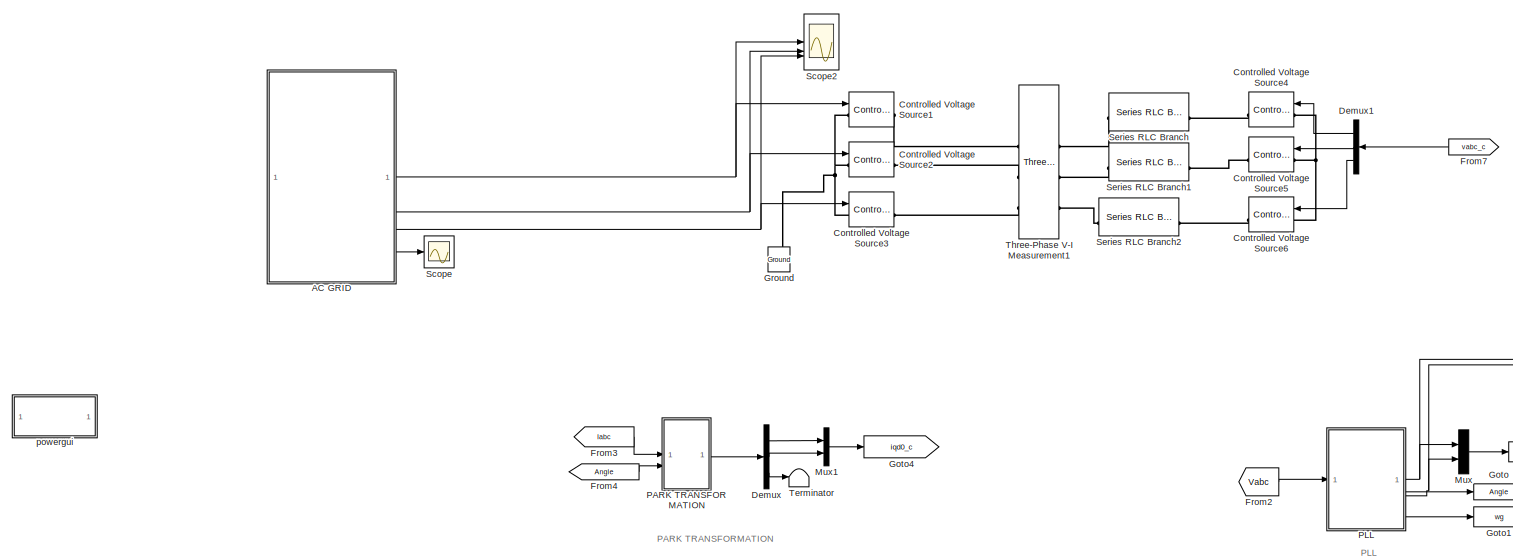
[diagram: root canvas - part 1/3, full width, top band]
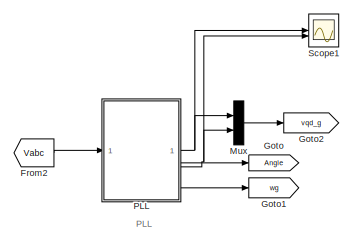
[diagram: root canvas - part 2/3, middle right region]
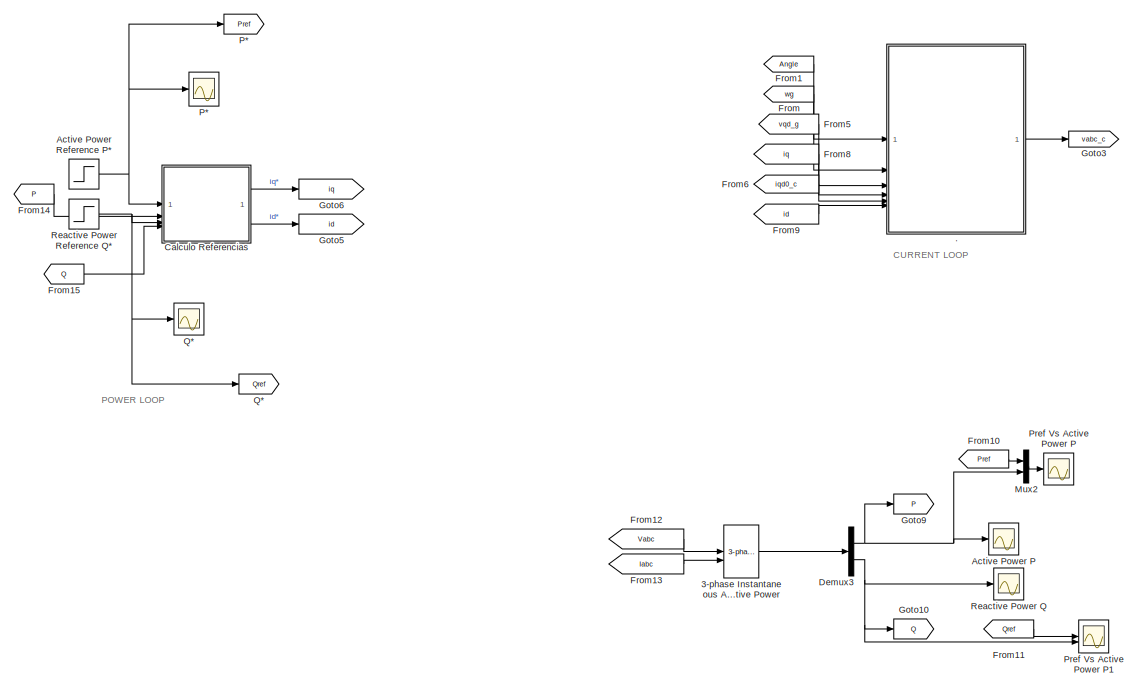
[diagram: root canvas - part 3/3, bottom center region]
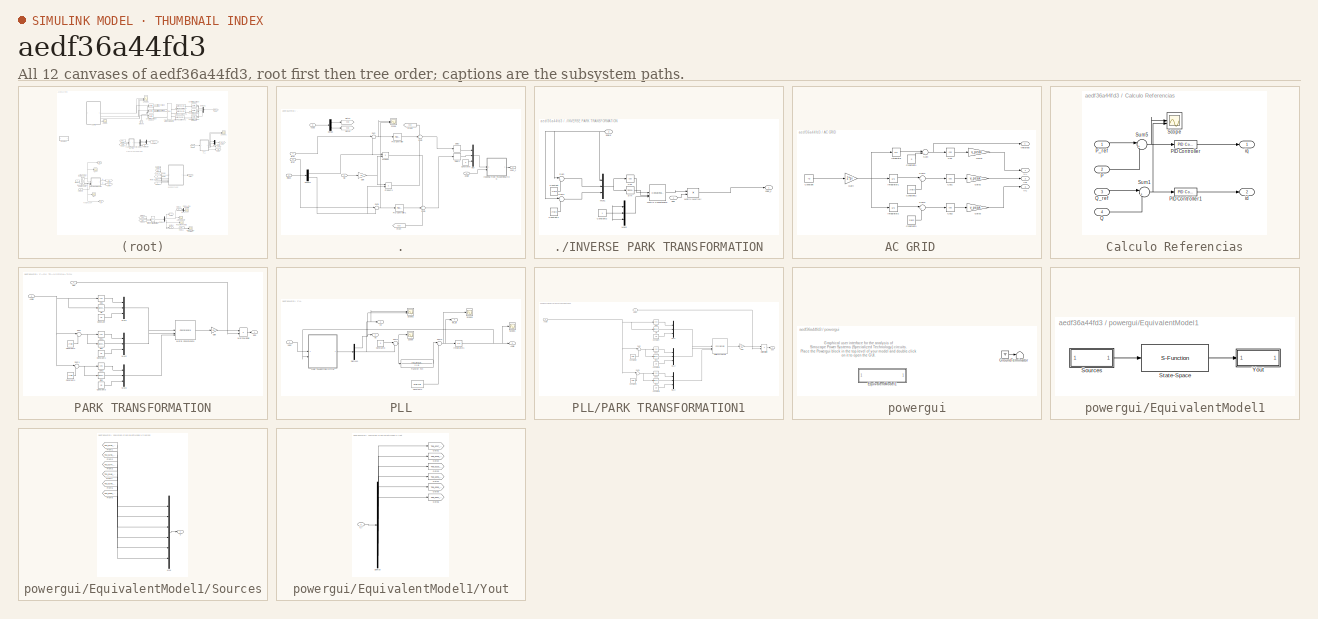
[diagram: thumbnail index - all 12 canvases of the model, root first then tree order]
MODEL slx_aedf36a44fd3
KIND model
CONFIG AbsTol = auto
CONFIG EnableMultiTasking = off
CONFIG FixedStep = 1e-4
CONFIG MaxStep = 1e-5
CONFIG MinStep = auto
CONFIG RelTol = 1e-4
CONFIG SampleTimeConstraint = Unconstrained
CONFIG SolverName = ode1
CONFIG StartTime = 0.0
CONFIG StopTime = 2
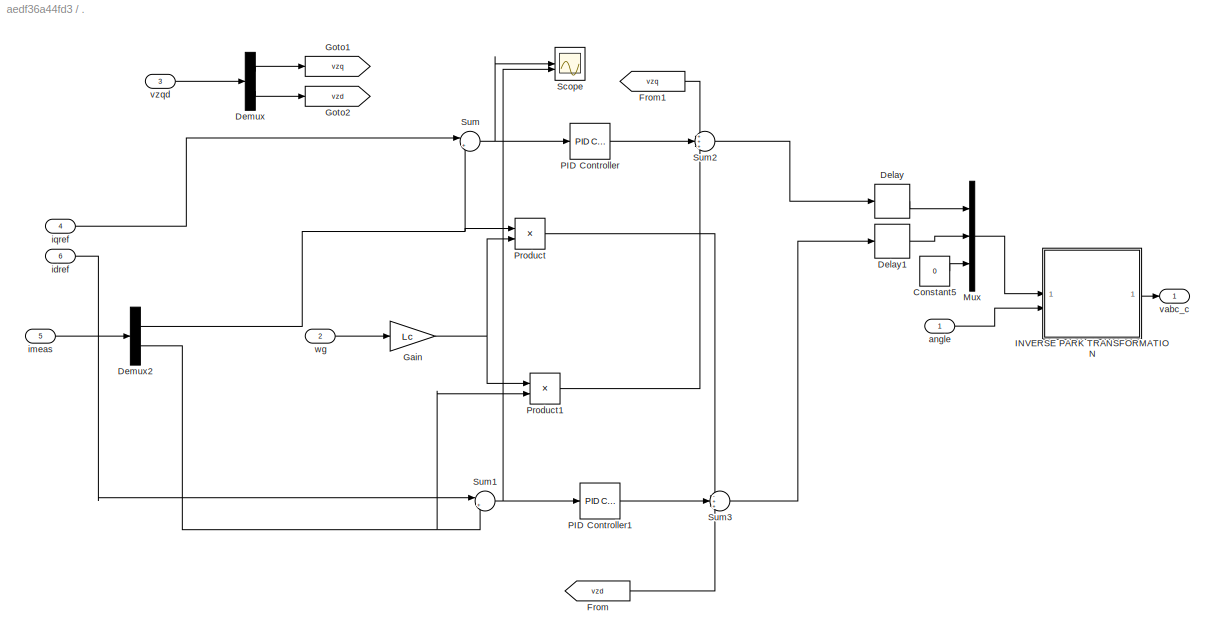
BLOCK [SubSystem] .
BLOCK [Constant] ./Constant5
  Value = 0
BLOCK [Delay] ./Delay
  DelayLength = 1
  InputPortMap = u0
BLOCK [Delay] ./Delay1
  DelayLength = 1
  InputPortMap = u0
BLOCK [Demux] ./Demux
  Outputs = 2
BLOCK [Demux] ./Demux2
  Outputs = 2
BLOCK [From] ./From
  GotoTag = vzd
BLOCK [From] ./From1
  GotoTag = vzq
BLOCK [Gain] ./Gain
  Gain = Lc
BLOCK [Goto] ./Goto1
  GotoTag = vzq
BLOCK [Goto] ./Goto2
  GotoTag = vzd
BLOCK [SubSystem] ./INVERSE PARK TRANSFORMATION
BLOCK [Constant] ./INVERSE PARK TRANSFORMATION/Constant
  Value = -2*pi/3
BLOCK [Constant] ./INVERSE PARK TRANSFORMATION/Constant1
  Value = 2*pi/3
BLOCK [Constant] ./INVERSE PARK TRANSFORMATION/Constant2
BLOCK [Trigonometry] ./INVERSE PARK TRANSFORMATION/Cos
  Operator = cos
BLOCK [Concatenate] ./INVERSE PARK TRANSFORMATION/Matrix Concatenate
  ConcatenateDimension = 2
  Mode = Multidimensional array
  NumInputs = 3
BLOCK [Product] ./INVERSE PARK TRANSFORMATION/Matrix Multiply
  Multiplication = Matrix(*)
BLOCK [Mux] ./INVERSE PARK TRANSFORMATION/Mux1
  DisplayOption = bar
  Inputs = 3
BLOCK [Mux] ./INVERSE PARK TRANSFORMATION/Mux2
  DisplayOption = bar
  Inputs = 3
BLOCK [Trigonometry] ./INVERSE PARK TRANSFORMATION/Sin
BLOCK [Sum] ./INVERSE PARK TRANSFORMATION/Sum
  Inputs = |++
BLOCK [Sum] ./INVERSE PARK TRANSFORMATION/Sum1
  Inputs = |++
BLOCK [Inport] ./INVERSE PARK TRANSFORMATION/angle
  IconDisplay = Signal name
  Port = 2
BLOCK [Inport] ./INVERSE PARK TRANSFORMATION/dq0
BLOCK [Outport] ./INVERSE PARK TRANSFORMATION/vabc_c
  IconDisplay = Signal name
BLOCK [Mux] ./Mux
  DisplayOption = bar
  Inputs = 3
BLOCK [Reference] ./PID Controller  REF=slpidlib/PID Controller
  LibrarySourceBlock = simulink/Continuous/PID Controller
  SourceBlock = slpidlib/PID Controller
  SourceType = PID 1dof
BLOCK [Reference] ./PID Controller1  REF=slpidlib/PID Controller
  LibrarySourceBlock = simulink/Continuous/PID Controller
  SourceBlock = slpidlib/PID Controller
  SourceType = PID 1dof
BLOCK [Product] ./Product
BLOCK [Product] ./Product1
BLOCK [Scope] ./Scope
  Floating = off
  NumInputPorts = 2
  ScopeSpecificationString = Simulink.scopes.TimeScopeBlockCfg('CurrentConfiguration', extmgr.ConfigurationSet(extmgr.Configuration('Core','General UI',true),extmgr.Configuration('Core','Source UI',true),extmgr.Configuration('Sources','WiredSimulink',true,'DataLoggingVariableName','ScopeData1'),extmgr.Configuration('Visuals','Time Domain',true,'SerializedDisplays',{struct('MinYLimReal','-55.90678','MaxYLimReal','448.85242','Y...<+1539ch>
BLOCK [Sum] ./Sum
  Inputs = |+-
BLOCK [Sum] ./Sum1
  Inputs = |+-
BLOCK [Sum] ./Sum2
  Inputs = +++
BLOCK [Sum] ./Sum3
  Inputs = -++
BLOCK [Inport] ./angle
BLOCK [Inport] ./idref
  Port = 6
BLOCK [Inport] ./imeas
  Port = 5
BLOCK [Inport] ./iqref
  Port = 4
BLOCK [Outport] ./vabc_c
BLOCK [Inport] ./vzqd
  Port = 3
BLOCK [Inport] ./wg
  Port = 2
BLOCK [Reference] 3-phase  Instantaneous  Active & Reactive Power  REF=powerlib_extras/Measurements/3-phase 
Instantaneous 
Active & Reactive Power
  SourceBlock = powerlib_extras/Measurements/3-phase \nInstantaneous \nActive & Reactive Power
  SourceType = 3-phase instantaneous active and reactive power
BLOCK [SubSystem] AC GRID  
BLOCK [Constant] AC GRID  /Constant
  Value = fg
BLOCK [Constant] AC GRID  /Constant1
  Value = 0
BLOCK [Constant] AC GRID  /Constant2
  Value = -2*pi/3
BLOCK [Constant] AC GRID  /Constant3
  Value = 2*pi/3
BLOCK [Trigonometry] AC GRID  /Cos
  Operator = cos
BLOCK [Trigonometry] AC GRID  /Cos1
  Operator = cos
BLOCK [Trigonometry] AC GRID  /Cos2
  Operator = cos
BLOCK [Gain] AC GRID  /Gain
  Gain = 2*pi
BLOCK [Gain] AC GRID  /Gain1
  Gain = v_peak
BLOCK [Gain] AC GRID  /Gain2
  Gain = v_peak
BLOCK [Gain] AC GRID  /Gain3
  Gain = v_peak
BLOCK [Integrator] AC GRID  /Integrator
BLOCK [Integrator] AC GRID  /Integrator1
BLOCK [Integrator] AC GRID  /Integrator2
BLOCK [Sum] AC GRID  /Sum
  Inputs = |++
BLOCK [Sum] AC GRID  /Sum1
  Inputs = |++
BLOCK [Sum] AC GRID  /Sum2
  Inputs = |++
BLOCK [Outport] AC GRID  /VA
BLOCK [Outport] AC GRID  /VB
  Port = 2
BLOCK [Outport] AC GRID  /VC
  Port = 3
BLOCK [Outport] AC GRID  /thetareal
  Port = 4
BLOCK [Scope] Active Power P
  Floating = off
  NameLocation = top
  NumInputPorts = 1
  ScopeSpecificationString = Simulink.scopes.TimeScopeBlockCfg('CurrentConfiguration', extmgr.ConfigurationSet(extmgr.Configuration('Core','General UI',true),extmgr.Configuration('Core','Source UI',true),extmgr.Configuration('Sources','WiredSimulink',true,'DataLoggingVariableName','ScopeData3','DataLoggingSaveFormat','StructureWithTime','DataLoggingDecimation','1','DataLoggingDecimateData',true),extmgr.Configuration('Visuals'...<+1797ch>
BLOCK [Step] Active Power Reference P* 
  After = 5e6
  NameLocation = top
  SampleTime = 0
  Time = 0.2
BLOCK [SubSystem] Calculo Referencias
BLOCK [Inport] Calculo Referencias/P
  Port = 2
BLOCK [Reference] Calculo Referencias/PID Controller  REF=slpidlib/PID Controller
  SourceBlock = slpidlib/PID Controller
  SourceType = PID 1dof
BLOCK [Reference] Calculo Referencias/PID Controller1  REF=slpidlib/PID Controller
  SourceBlock = slpidlib/PID Controller
  SourceType = PID 1dof
BLOCK [Inport] Calculo Referencias/P_ref
BLOCK [Inport] Calculo Referencias/Q
  Port = 4
BLOCK [Inport] Calculo Referencias/Q_ref
  Port = 3
BLOCK [Scope] Calculo Referencias/Scope
  Floating = off
  NumInputPorts = 2
  ScopeSpecificationString = Simulink.scopes.TimeScopeBlockCfg('CurrentConfiguration', extmgr.ConfigurationSet(extmgr.Configuration('Core','General UI',true,'FigureColor',[1 1 1]),extmgr.Configuration('Core','Source UI',true),extmgr.Configuration('Sources','WiredSimulink',true,'DataLoggingVariableName','ScopeData1'),extmgr.Configuration('Visuals','Time Domain',true,'SerializedDisplays',{struct('MinYLimReal','-636527.26934','M...<+1741ch>
BLOCK [Sum] Calculo Referencias/Sum1
  Inputs = |+-
BLOCK [Sum] Calculo Referencias/Sum5
  Inputs = |+-
BLOCK [Outport] Calculo Referencias/id
  Port = 2
BLOCK [Outport] Calculo Referencias/iq
  NameLocation = top
BLOCK [Reference] Controlled Voltage Source1  REF=spsControlledVoltageSourceLib/Controlled Voltage Source
  LibrarySourceBlock = sps_lib/Sources/Controlled Voltage Source
  NameLocation = left
  SourceBlock = spsControlledVoltageSourceLib/Controlled Voltage Source
  SourceType = Controlled Voltage Source
BLOCK [Reference] Controlled Voltage Source2  REF=spsControlledVoltageSourceLib/Controlled Voltage Source
  LibrarySourceBlock = sps_lib/Sources/Controlled Voltage Source
  NameLocation = left
  SourceBlock = spsControlledVoltageSourceLib/Controlled Voltage Source
  SourceType = Controlled Voltage Source
BLOCK [Reference] Controlled Voltage Source3  REF=spsControlledVoltageSourceLib/Controlled Voltage Source
  LibrarySourceBlock = sps_lib/Sources/Controlled Voltage Source
  NameLocation = left
  SourceBlock = spsControlledVoltageSourceLib/Controlled Voltage Source
  SourceType = Controlled Voltage Source
BLOCK [Reference] Controlled Voltage Source4  REF=spsControlledVoltageSourceLib/Controlled Voltage Source
  LibrarySourceBlock = sps_lib/Sources/Controlled Voltage Source
  NameLocation = right
  SourceBlock = spsControlledVoltageSourceLib/Controlled Voltage Source
  SourceType = Controlled Voltage Source
BLOCK [Reference] Controlled Voltage Source5  REF=spsControlledVoltageSourceLib/Controlled Voltage Source
  LibrarySourceBlock = sps_lib/Sources/Controlled Voltage Source
  NameLocation = right
  SourceBlock = spsControlledVoltageSourceLib/Controlled Voltage Source
  SourceType = Controlled Voltage Source
BLOCK [Reference] Controlled Voltage Source6  REF=spsControlledVoltageSourceLib/Controlled Voltage Source
  LibrarySourceBlock = sps_lib/Sources/Controlled Voltage Source
  NameLocation = right
  SourceBlock = spsControlledVoltageSourceLib/Controlled Voltage Source
  SourceType = Controlled Voltage Source
BLOCK [Demux] Demux
  Outputs = 3
BLOCK [Demux] Demux1
  NameLocation = top
  Outputs = 3
BLOCK [Demux] Demux3
  Outputs = 2
BLOCK [From] From
  GotoTag = wg
BLOCK [From] From1
  GotoTag = Angle
BLOCK [From] From10
  GotoTag = Pref
BLOCK [From] From11
  GotoTag = Qref
BLOCK [From] From12
  GotoTag = Vabc
  TagVisibility = global
BLOCK [From] From13
  GotoTag = Iabc
  TagVisibility = global
BLOCK [From] From14
  GotoTag = P
BLOCK [From] From15
  GotoTag = Q
BLOCK [From] From2
  GotoTag = Vabc
  TagVisibility = global
BLOCK [From] From3
  GotoTag = Iabc
  TagVisibility = global
BLOCK [From] From4
  GotoTag = Angle
BLOCK [From] From5
  GotoTag = vqd_g
BLOCK [From] From6
  GotoTag = iqd0_c
BLOCK [From] From7
  GotoTag = vabc_c
  NameLocation = top
BLOCK [From] From8
  GotoTag = iq
BLOCK [From] From9
  GotoTag = id
BLOCK [Goto] Goto
  GotoTag = Angle
BLOCK [Goto] Goto1
  GotoTag = wg
BLOCK [Goto] Goto10
  GotoTag = Q
BLOCK [Goto] Goto2
  GotoTag = vqd_g
BLOCK [Goto] Goto3
  GotoTag = vabc_c
BLOCK [Goto] Goto4
  GotoTag = iqd0_c
BLOCK [Goto] Goto5
  GotoTag = id
BLOCK [Goto] Goto6
  GotoTag = iq
BLOCK [Goto] Goto9
  GotoTag = P
BLOCK [Reference] Ground  REF=spsGroundLib/Ground
  LibrarySourceBlock = sps_lib/Utilities/Ground
  NameLocation = right
  SourceBlock = spsGroundLib/Ground
  SourceType = Ground
BLOCK [Mux] Mux
  DisplayOption = bar
  Inputs = 2
BLOCK [Mux] Mux1
  DisplayOption = bar
  Inputs = 2
BLOCK [Mux] Mux2
  DisplayOption = bar
  Inputs = 2
BLOCK [Scope] P*
  Floating = off
  NameLocation = top
  NumInputPorts = 1
  ScopeSpecificationString = Simulink.scopes.TimeScopeBlockCfg('CurrentConfiguration', extmgr.ConfigurationSet(extmgr.Configuration('Core','General UI',true),extmgr.Configuration('Core','Source UI',true),extmgr.Configuration('Sources','WiredSimulink',true,'DataLoggingVariableName','ScopeData2','DataLoggingSaveFormat','StructureWithTime','DataLoggingDecimation','1','DataLoggingDecimateData',true),extmgr.Configuration('Visuals'...<+1850ch>
BLOCK [Goto] P* 
  GotoTag = Pref
  NameLocation = top
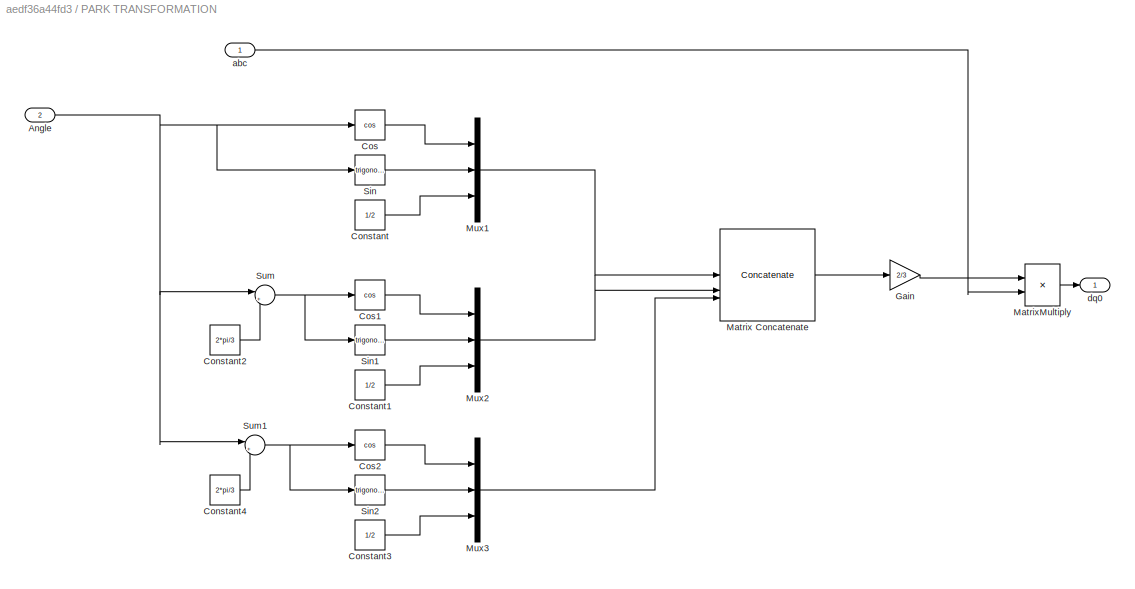
BLOCK [SubSystem] PARK TRANSFORMATION
BLOCK [Inport] PARK TRANSFORMATION/Angle
  IconDisplay = Signal name
  Port = 2
BLOCK [Constant] PARK TRANSFORMATION/Constant
  Value = 1/2
BLOCK [Constant] PARK TRANSFORMATION/Constant1
  Value = 1/2
BLOCK [Constant] PARK TRANSFORMATION/Constant2
  Value = 2*pi/3
BLOCK [Constant] PARK TRANSFORMATION/Constant3
  Value = 1/2
BLOCK [Constant] PARK TRANSFORMATION/Constant4
  Value = 2*pi/3
BLOCK [Trigonometry] PARK TRANSFORMATION/Cos
  Operator = cos
BLOCK [Trigonometry] PARK TRANSFORMATION/Cos1
  Operator = cos
BLOCK [Trigonometry] PARK TRANSFORMATION/Cos2
  Operator = cos
BLOCK [Gain] PARK TRANSFORMATION/Gain
  Gain = 2/3
BLOCK [Concatenate] PARK TRANSFORMATION/Matrix Concatenate
  ConcatenateDimension = 2
  Mode = Multidimensional array
  NumInputs = 3
BLOCK [Product] PARK TRANSFORMATION/MatrixMultiply
  Multiplication = Matrix(*)
BLOCK [Mux] PARK TRANSFORMATION/Mux1
  DisplayOption = bar
  Inputs = 3
BLOCK [Mux] PARK TRANSFORMATION/Mux2
  DisplayOption = bar
  Inputs = 3
BLOCK [Mux] PARK TRANSFORMATION/Mux3
  DisplayOption = bar
  Inputs = 3
BLOCK [Trigonometry] PARK TRANSFORMATION/Sin
BLOCK [Trigonometry] PARK TRANSFORMATION/Sin1
BLOCK [Trigonometry] PARK TRANSFORMATION/Sin2
BLOCK [Sum] PARK TRANSFORMATION/Sum
  Inputs = |+-
BLOCK [Sum] PARK TRANSFORMATION/Sum1
  Inputs = |++
BLOCK [Inport] PARK TRANSFORMATION/abc
BLOCK [Outport] PARK TRANSFORMATION/dq0
  IconDisplay = Signal name
BLOCK [SubSystem] PLL
BLOCK [Outport] PLL/Angle
  Port = 3
BLOCK [Constant] PLL/Constant2
  Value = 2*pi*fg
BLOCK [Constant] PLL/Constant3
  Value = 0
BLOCK [Demux] PLL/Demux1
  Outputs = 3
BLOCK [Integrator] PLL/Integrator1
BLOCK [SubSystem] PLL/PARK TRANSFORMATION1
BLOCK [Inport] PLL/PARK TRANSFORMATION1/Angle
  IconDisplay = Signal name
  Port = 2
BLOCK [Constant] PLL/PARK TRANSFORMATION1/Constant
  Value = 1/2
BLOCK [Constant] PLL/PARK TRANSFORMATION1/Constant1
  Value = 1/2
BLOCK [Constant] PLL/PARK TRANSFORMATION1/Constant2
  Value = 2*pi/3
BLOCK [Constant] PLL/PARK TRANSFORMATION1/Constant3
  Value = 1/2
BLOCK [Constant] PLL/PARK TRANSFORMATION1/Constant4
  Value = 2*pi/3
BLOCK [Trigonometry] PLL/PARK TRANSFORMATION1/Cos
  Operator = cos
BLOCK [Trigonometry] PLL/PARK TRANSFORMATION1/Cos1
  Operator = cos
BLOCK [Trigonometry] PLL/PARK TRANSFORMATION1/Cos2
  Operator = cos
BLOCK [Gain] PLL/PARK TRANSFORMATION1/Gain
  Gain = 2/3
BLOCK [Concatenate] PLL/PARK TRANSFORMATION1/Matrix Concatenate
  ConcatenateDimension = 2
  Mode = Multidimensional array
  NumInputs = 3
BLOCK [Product] PLL/PARK TRANSFORMATION1/MatrixMultiply
  Multiplication = Matrix(*)
BLOCK [Mux] PLL/PARK TRANSFORMATION1/Mux1
  DisplayOption = bar
  Inputs = 3
BLOCK [Mux] PLL/PARK TRANSFORMATION1/Mux2
  DisplayOption = bar
  Inputs = 3
BLOCK [Mux] PLL/PARK TRANSFORMATION1/Mux3
  DisplayOption = bar
  Inputs = 3
BLOCK [Trigonometry] PLL/PARK TRANSFORMATION1/Sin
BLOCK [Trigonometry] PLL/PARK TRANSFORMATION1/Sin1
BLOCK [Trigonometry] PLL/PARK TRANSFORMATION1/Sin2
BLOCK [Sum] PLL/PARK TRANSFORMATION1/Sum
  Inputs = |+-
BLOCK [Sum] PLL/PARK TRANSFORMATION1/Sum1
  Inputs = |++
BLOCK [Inport] PLL/PARK TRANSFORMATION1/Vabc
BLOCK [Outport] PLL/PARK TRANSFORMATION1/dq0
  IconDisplay = Signal name
BLOCK [Scope] PLL/Scope
  Floating = off
  NumInputPorts = 1
  ScopeSpecificationString = Simulink.scopes.TimeScopeBlockCfg('CurrentConfiguration', extmgr.ConfigurationSet(extmgr.Configuration('Core','General UI',true),extmgr.Configuration('Core','Source UI',true),extmgr.Configuration('Sources','WiredSimulink',true,'DataLoggingVariableName','ScopeData2'),extmgr.Configuration('Visuals','Time Domain',true,'SerializedDisplays',{struct('MinYLimReal','-0.000000000019','MaxYLimReal','0.00000...<+1527ch>
BLOCK [Scope] PLL/Scope1
  Floating = off
  NumInputPorts = 1
  ScopeSpecificationString = Simulink.scopes.TimeScopeBlockCfg('CurrentConfiguration', extmgr.ConfigurationSet(extmgr.Configuration('Core','General UI',true),extmgr.Configuration('Core','Source UI',true),extmgr.Configuration('Sources','WiredSimulink',true,'DataLoggingVariableName','ScopeData6','DataLogging',true,'DataLoggingSaveFormat','StructureWithTime'),extmgr.Configuration('Visuals','Time Domain',true,'SerializedDisplays'...<+1606ch>
BLOCK [Scope] PLL/Scope2
  Floating = off
  NumInputPorts = 2
  ScopeSpecificationString = Simulink.scopes.TimeScopeBlockCfg('CurrentConfiguration', extmgr.ConfigurationSet(extmgr.Configuration('Core','General UI',true),extmgr.Configuration('Core','Source UI',true),extmgr.Configuration('Sources','WiredSimulink',true,'DataLoggingVariableName','ScopeData2'),extmgr.Configuration('Visuals','Time Domain',true,'SerializedDisplays',{struct('MinYLimReal','-704.2283','MaxYLimReal','704.2283','YL...<+1566ch>
BLOCK [Scope] PLL/Scope3
  Floating = off
  NumInputPorts = 1
  ScopeSpecificationString = Simulink.scopes.TimeScopeBlockCfg('CurrentConfiguration', extmgr.ConfigurationSet(extmgr.Configuration('Core','General UI',true),extmgr.Configuration('Core','Source UI',true),extmgr.Configuration('Sources','WiredSimulink',true,'DataLoggingVariableName','ScopeData6','DataLogging',true,'DataLoggingSaveFormat','StructureWithTime'),extmgr.Configuration('Visuals','Time Domain',true,'SerializedDisplays'...<+1684ch>
BLOCK [Sum] PLL/Sum2
  Inputs = |+-
BLOCK [Sum] PLL/Sum3
  Inputs = |++
BLOCK [TransferFcn] PLL/Transfer Fcn
  Denominator = [1 0]
  Numerator = [kp_pll ki_pll]
BLOCK [Inport] PLL/Vabc
BLOCK [Outport] PLL/Vq
BLOCK [Outport] PLL/vd
  Port = 2
BLOCK [Outport] PLL/wn_pll
  Port = 4
BLOCK [Scope] Pref Vs Active Power P
  Floating = off
  NameLocation = top
  NumInputPorts = 1
  ScopeSpecificationString = Simulink.scopes.TimeScopeBlockCfg('CurrentConfiguration', extmgr.ConfigurationSet(extmgr.Configuration('Core','General UI',true,'FigureColor',[1 1 1]),extmgr.Configuration('Core','Source UI',true),extmgr.Configuration('Sources','WiredSimulink',true,'DataLoggingVariableName','ScopeData4','DataLoggingSaveFormat','StructureWithTime','DataLoggingDecimation','1','DataLoggingDecimateData',true,'DataLogg...<+2129ch>
BLOCK [Scope] Pref Vs Active Power P1
  Floating = off
  NameLocation = top
  NumInputPorts = 2
  ScopeSpecificationString = Simulink.scopes.TimeScopeBlockCfg('CurrentConfiguration', extmgr.ConfigurationSet(extmgr.Configuration('Core','General UI',true,'FigureColor',[1 1 1]),extmgr.Configuration('Core','Source UI',true),extmgr.Configuration('Sources','WiredSimulink',true,'DataLoggingVariableName','ScopeData5','DataLoggingSaveFormat','StructureWithTime','DataLoggingDecimation','1','DataLoggingDecimateData',true,'DataLogg...<+2433ch>
BLOCK [Scope] Q*
  Floating = off
  NumInputPorts = 1
  ScopeSpecificationString = Simulink.scopes.TimeScopeBlockCfg('CurrentConfiguration', extmgr.ConfigurationSet(extmgr.Configuration('Core','General UI',true),extmgr.Configuration('Core','Source UI',true),extmgr.Configuration('Sources','WiredSimulink',true,'DataLoggingVariableName','ScopeData1','DataLoggingSaveFormat','StructureWithTime','DataLoggingDecimation','1','DataLoggingDecimateData',true),extmgr.Configuration('Visuals'...<+1803ch>
BLOCK [Goto] Q* 
  GotoTag = Qref
  NameLocation = top
BLOCK [Scope] Reactive Power Q
  Floating = off
  NumInputPorts = 1
  ScopeSpecificationString = Simulink.scopes.TimeScopeBlockCfg('CurrentConfiguration', extmgr.ConfigurationSet(extmgr.Configuration('Core','General UI',true),extmgr.Configuration('Core','Source UI',true),extmgr.Configuration('Sources','WiredSimulink',true,'DataLoggingVariableName','ScopeData6','DataLoggingSaveFormat','StructureWithTime','DataLoggingDecimation','1','DataLoggingDecimateData',true),extmgr.Configuration('Visuals'...<+1818ch>
BLOCK [Step] Reactive Power Reference Q* 
  After = 3e3
  SampleTime = 0
  Time = 0.4
BLOCK [Scope] Scope
  Floating = off
  NumInputPorts = 1
  ScopeSpecificationString = Simulink.scopes.TimeScopeBlockCfg('CurrentConfiguration', extmgr.ConfigurationSet(extmgr.Configuration('Core','General UI',true),extmgr.Configuration('Core','Source UI',true),extmgr.Configuration('Sources','WiredSimulink',true),extmgr.Configuration('Visuals','Time Domain',true,'SerializedDisplays',{struct('MinYLimReal','-39.26991','MaxYLimReal','353.42917','YLabelReal','','MinYLimMag','0.00000','M...<+1430ch>
BLOCK [Scope] Scope1
  Floating = off
  NumInputPorts = 2
  ScopeSpecificationString = Simulink.scopes.TimeScopeBlockCfg('CurrentConfiguration', extmgr.ConfigurationSet(extmgr.Configuration('Core','General UI',true,'FigureColor',[1 1 1]),extmgr.Configuration('Core','Source UI',true),extmgr.Configuration('Sources','WiredSimulink',true,'DataLoggingVariableName','ScopeData1','DataLogging',true,'DataLoggingSaveFormat','StructureWithTime'),extmgr.Configuration('Visuals','Time Domain',tru...<+1801ch>
BLOCK [Scope] Scope2
  Floating = off
  NumInputPorts = 3
  ScopeSpecificationString = Simulink.scopes.TimeScopeBlockCfg('CurrentConfiguration', extmgr.ConfigurationSet(extmgr.Configuration('Core','General UI',true,'FigureColor',[1 1 1]),extmgr.Configuration('Core','Source UI',true),extmgr.Configuration('Sources','WiredSimulink',true,'DataLoggingVariableName','ScopeData0','DataLogging',true,'DataLoggingSaveFormat','StructureWithTime'),extmgr.Configuration('Visuals','Time Domain',tru...<+1956ch>
BLOCK [Reference] Series RLC Branch  REF=spsSeriesRLCBranchLib/Series RLC Branch
  LibrarySourceBlock = sps_lib/Passives/Series RLC Branch
  SourceBlock = spsSeriesRLCBranchLib/Series RLC Branch
  SourceType = Series RLC Branch
BLOCK [Reference] Series RLC Branch1  REF=spsSeriesRLCBranchLib/Series RLC Branch
  LibrarySourceBlock = sps_lib/Passives/Series RLC Branch
  SourceBlock = spsSeriesRLCBranchLib/Series RLC Branch
  SourceType = Series RLC Branch
BLOCK [Reference] Series RLC Branch2  REF=spsSeriesRLCBranchLib/Series RLC Branch
  LibrarySourceBlock = sps_lib/Passives/Series RLC Branch
  SourceBlock = spsSeriesRLCBranchLib/Series RLC Branch
  SourceType = Series RLC Branch
BLOCK [Terminator] Terminator
BLOCK [Reference] Three-Phase V-I Measurement1  REF=spsThreePhaseVIMeasurementLib/Three-Phase
V-I Measurement
  LibrarySourceBlock = sps_lib/Sensors and Measurements/Three-Phase\nV-I Measurement
  SourceBlock = spsThreePhaseVIMeasurementLib/Three-Phase\nV-I Measurement
  SourceType = Three-Phase VI Measurement
BLOCK [SubSystem] powergui
  AncestorBlock = sps_lib/powergui
  DialogController = POWERSYS.PowerSysDialog
  InitFcn = powergui( 'InitFcn_Callback' , gcb , 0 , [ ] );
  LibrarySourceBlock = sps_lib/powergui
  OpenFcn = sps_rtmsupport('OpenFcn',gcbh)
  PreSaveFcn = powergui( 'PreSaveFcn_Callback' , gcb , [ ] , [ ] );
  Priority = 1
BLOCK [SubSystem] powergui/EquivalentModel1
BLOCK [SubSystem] powergui/EquivalentModel1/Sources
BLOCK [From] powergui/EquivalentModel1/Sources/From1
  GotoTag = T53_5145_4389912451640
  TagVisibility = global
BLOCK [From] powergui/EquivalentModel1/Sources/From2
  GotoTag = T53_5146_4389356070791
  TagVisibility = global
BLOCK [From] powergui/EquivalentModel1/Sources/From3
  GotoTag = T53_5147_4388945214848
  TagVisibility = global
BLOCK [From] powergui/EquivalentModel1/Sources/From4
  GotoTag = T53_5148_4388679883810
  TagVisibility = global
BLOCK [From] powergui/EquivalentModel1/Sources/From5
  GotoTag = T53_5149_4388560077678
  TagVisibility = global
BLOCK [From] powergui/EquivalentModel1/Sources/From6
  GotoTag = T53_5150_4388585796451
  TagVisibility = global
BLOCK [Mux] powergui/EquivalentModel1/Sources/Mux
  DisplayOption = bar
  Inputs = [1 1 1 1 1 1]
BLOCK [Outport] powergui/EquivalentModel1/Sources/u
  VectorParamsAs1DForOutWhenUnconnected = off
BLOCK [S-Function] powergui/EquivalentModel1/State-Space
  EnableBusSupport = off
  FunctionName = sfun_spid_contc
  Parameters = S.Mg, [S.nb.x S.nb.u S.nb.y S.nb.s], S.x0, S.MgColNames
  SFcnIsStateOwnerBlock = off
  SFunctionDeploymentMode = off
BLOCK [SubSystem] powergui/EquivalentModel1/Yout
BLOCK [Demux] powergui/EquivalentModel1/Yout/Demux
  Outputs = [1 1 1 1 1 1]
BLOCK [Goto] powergui/EquivalentModel1/Yout/Goto1
  GotoTag = T68_6217_7104322600691
  TagVisibility = global
BLOCK [Goto] powergui/EquivalentModel1/Yout/Goto2
  GotoTag = T68_6218_7106949524109
  TagVisibility = global
BLOCK [Goto] powergui/EquivalentModel1/Yout/Goto3
  GotoTag = T68_6219_7109754014879
  TagVisibility = global
BLOCK [Goto] powergui/EquivalentModel1/Yout/Goto4
  GotoTag = T68_6205_7050967960639
  TagVisibility = global
BLOCK [Goto] powergui/EquivalentModel1/Yout/Goto5
  GotoTag = T68_6206_7053625622968
  TagVisibility = global
BLOCK [Goto] powergui/EquivalentModel1/Yout/Goto6
  GotoTag = T68_6207_7056460852649
  TagVisibility = global
BLOCK [Inport] powergui/EquivalentModel1/Yout/v,i
BLOCK [Ground] powergui/Ground
BLOCK [Terminator] powergui/Terminator
ANNOTATION (root): PARK TRANSFORMATION
ANNOTATION (root): POWER LOOP
ANNOTATION (root): PLL
ANNOTATION (root): CURRENT LOOP
ANNOTATION powergui: Graphical user interface for the analysis of Simscape Power Systems (Specialized Technology) circuits. Place the Powergui block in the top-level of your model and double-click on it to open the GUI.
LINE ./Constant5:1 -> ./Mux:3
LINE ./Delay1:1 -> ./Mux:2
LINE ./Delay:1 -> ./Mux:1
NET ./Demux2:1 -> ./Product:1, ./Sum:2
NET ./Demux2:2 -> ./Product1:2, ./Sum1:2
LINE ./Demux:1 -> ./Goto1:1
LINE ./Demux:2 -> ./Goto2:1
LINE ./From1:1 -> ./Sum2:1
LINE ./From:1 -> ./Sum3:3
NET ./Gain:1 -> ./Product1:1, ./Product:2
LINE ./INVERSE PARK TRANSFORMATION/Constant1:1 -> ./INVERSE PARK TRANSFORMATION/Sum1:2
NET ./INVERSE PARK TRANSFORMATION/Constant2:1 -> ./INVERSE PARK TRANSFORMATION/Mux2:1, ./INVERSE PARK TRANSFORMATION/Mux2:2, ./INVERSE PARK TRANSFORMATION/Mux2:3
LINE ./INVERSE PARK TRANSFORMATION/Constant:1 -> ./INVERSE PARK TRANSFORMATION/Sum:2
LINE ./INVERSE PARK TRANSFORMATION/Cos:1 -> ./INVERSE PARK TRANSFORMATION/Matrix Concatenate:1
LINE ./INVERSE PARK TRANSFORMATION/Matrix Concatenate:1 -> ./INVERSE PARK TRANSFORMATION/Matrix Multiply:1
LINE ./INVERSE PARK TRANSFORMATION/Matrix Multiply:1 -> ./INVERSE PARK TRANSFORMATION/vabc_c:1
NET ./INVERSE PARK TRANSFORMATION/Mux1:1 -> ./INVERSE PARK TRANSFORMATION/Cos:1, ./INVERSE PARK TRANSFORMATION/Sin:1
LINE ./INVERSE PARK TRANSFORMATION/Mux2:1 -> ./INVERSE PARK TRANSFORMATION/Matrix Concatenate:3
LINE ./INVERSE PARK TRANSFORMATION/Sin:1 -> ./INVERSE PARK TRANSFORMATION/Matrix Concatenate:2
LINE ./INVERSE PARK TRANSFORMATION/Sum1:1 -> ./INVERSE PARK TRANSFORMATION/Mux1:3
LINE ./INVERSE PARK TRANSFORMATION/Sum:1 -> ./INVERSE PARK TRANSFORMATION/Mux1:2
NET ./INVERSE PARK TRANSFORMATION/angle:1 -> ./INVERSE PARK TRANSFORMATION/Mux1:1, ./INVERSE PARK TRANSFORMATION/Sum1:1, ./INVERSE PARK TRANSFORMATION/Sum:1
LINE ./INVERSE PARK TRANSFORMATION/dq0:1 -> ./INVERSE PARK TRANSFORMATION/Matrix Multiply:2
LINE ./INVERSE PARK TRANSFORMATION:1 -> ./vabc_c:1
LINE ./Mux:1 -> ./INVERSE PARK TRANSFORMATION:1
LINE ./PID Controller1:1 -> ./Sum3:2
LINE ./PID Controller:1 -> ./Sum2:2
LINE ./Product1:1 -> ./Sum2:3
LINE ./Product:1 -> ./Sum3:1
NET ./Sum1:1 -> ./PID Controller1:1, ./Scope:2
LINE ./Sum2:1 -> ./Delay:1
LINE ./Sum3:1 -> ./Delay1:1
NET ./Sum:1 -> ./PID Controller:1, ./Scope:1
LINE ./angle:1 -> ./INVERSE PARK TRANSFORMATION:2
LINE ./idref:1 -> ./Sum1:1
LINE ./imeas:1 -> ./Demux2:1
LINE ./iqref:1 -> ./Sum:1
LINE ./vzqd:1 -> ./Demux:1
LINE ./wg:1 -> ./Gain:1
LINE .:1 -> Goto3:1
LINE 3-phase  Instantaneous  Active & Reactive Power:1 -> Demux3:1
LINE AC GRID  /Constant1:1 -> AC GRID  /Sum:2
LINE AC GRID  /Constant2:1 -> AC GRID  /Sum1:2
LINE AC GRID  /Constant3:1 -> AC GRID  /Sum2:2
LINE AC GRID  /Constant:1 -> AC GRID  /Gain:1
LINE AC GRID  /Cos1:1 -> AC GRID  /Gain2:1
LINE AC GRID  /Cos2:1 -> AC GRID  /Gain3:1
LINE AC GRID  /Cos:1 -> AC GRID  /Gain1:1
LINE AC GRID  /Gain1:1 -> AC GRID  /VA:1
LINE AC GRID  /Gain2:1 -> AC GRID  /VB:1
LINE AC GRID  /Gain3:1 -> AC GRID  /VC:1
NET AC GRID  /Gain:1 -> AC GRID  /Integrator1:1, AC GRID  /Integrator2:1, AC GRID  /Integrator:1
LINE AC GRID  /Integrator1:1 -> AC GRID  /Sum1:1
LINE AC GRID  /Integrator2:1 -> AC GRID  /Sum2:1
LINE AC GRID  /Integrator:1 -> AC GRID  /Sum:1
LINE AC GRID  /Sum1:1 -> AC GRID  /Cos1:1
LINE AC GRID  /Sum2:1 -> AC GRID  /Cos2:1
NET AC GRID  /Sum:1 -> AC GRID  /Cos:1, AC GRID  /thetareal:1
NET AC GRID  :1 -> Controlled Voltage Source1:1, Scope2:1
NET AC GRID  :2 -> Controlled Voltage Source2:1, Scope2:2
NET AC GRID  :3 -> Controlled Voltage Source3:1, Scope2:3
LINE AC GRID  :4 -> Scope:1
NET Active Power Reference P* :1 -> Calculo Referencias:1, P* :1, P*:1
LINE Calculo Referencias/P:1 -> Calculo Referencias/Sum5:2
LINE Calculo Referencias/PID Controller1:1 -> Calculo Referencias/id:1
LINE Calculo Referencias/PID Controller:1 -> Calculo Referencias/iq:1
LINE Calculo Referencias/P_ref:1 -> Calculo Referencias/Sum5:1
LINE Calculo Referencias/Q:1 -> Calculo Referencias/Sum1:2
LINE Calculo Referencias/Q_ref:1 -> Calculo Referencias/Sum1:1
NET Calculo Referencias/Sum1:1 -> Calculo Referencias/PID Controller1:1, Calculo Referencias/Scope:2
NET Calculo Referencias/Sum5:1 -> Calculo Referencias/PID Controller:1, Calculo Referencias/Scope:1
LINE Calculo Referencias:1 -> Goto6:1
LINE Calculo Referencias:2 -> Goto5:1
LINE Demux1:1 -> Controlled Voltage Source4:1
LINE Demux1:2 -> Controlled Voltage Source5:1
LINE Demux1:3 -> Controlled Voltage Source6:1
NET Demux3:1 -> Active Power P:1, Goto9:1, Mux2:2
NET Demux3:2 -> Goto10:1, Pref Vs Active Power P1:2, Reactive Power Q:1
LINE Demux:1 -> Mux1:1
LINE Demux:2 -> Mux1:2
LINE Demux:3 -> Terminator:1
LINE From10:1 -> Mux2:1
LINE From11:1 -> Pref Vs Active Power P1:1
LINE From12:1 -> 3-phase  Instantaneous  Active & Reactive Power:1
LINE From13:1 -> 3-phase  Instantaneous  Active & Reactive Power:2
LINE From14:1 -> Calculo Referencias:2
LINE From15:1 -> Calculo Referencias:4
LINE From1:1 -> .:1
LINE From2:1 -> PLL:1
LINE From3:1 -> PARK TRANSFORMATION:1
LINE From4:1 -> PARK TRANSFORMATION:2
LINE From5:1 -> .:3
LINE From6:1 -> .:5
LINE From7:1 -> Demux1:1
LINE From8:1 -> .:4
LINE From9:1 -> .:6
LINE From:1 -> .:2
LINE Mux1:1 -> Goto4:1
LINE Mux2:1 -> Pref Vs Active Power P:1
LINE Mux:1 -> Goto2:1
NET PARK TRANSFORMATION/Angle:1 -> PARK TRANSFORMATION/Cos:1, PARK TRANSFORMATION/Sin:1, PARK TRANSFORMATION/Sum1:1, PARK TRANSFORMATION/Sum:1
LINE PARK TRANSFORMATION/Constant1:1 -> PARK TRANSFORMATION/Mux2:3
LINE PARK TRANSFORMATION/Constant2:1 -> PARK TRANSFORMATION/Sum:2
LINE PARK TRANSFORMATION/Constant3:1 -> PARK TRANSFORMATION/Mux3:3
LINE PARK TRANSFORMATION/Constant4:1 -> PARK TRANSFORMATION/Sum1:2
LINE PARK TRANSFORMATION/Constant:1 -> PARK TRANSFORMATION/Mux1:3
LINE PARK TRANSFORMATION/Cos1:1 -> PARK TRANSFORMATION/Mux2:1
LINE PARK TRANSFORMATION/Cos2:1 -> PARK TRANSFORMATION/Mux3:1
LINE PARK TRANSFORMATION/Cos:1 -> PARK TRANSFORMATION/Mux1:1
LINE PARK TRANSFORMATION/Gain:1 -> PARK TRANSFORMATION/MatrixMultiply:1
LINE PARK TRANSFORMATION/Matrix Concatenate:1 -> PARK TRANSFORMATION/Gain:1
LINE PARK TRANSFORMATION/MatrixMultiply:1 -> PARK TRANSFORMATION/dq0:1
LINE PARK TRANSFORMATION/Mux1:1 -> PARK TRANSFORMATION/Matrix Concatenate:1
LINE PARK TRANSFORMATION/Mux2:1 -> PARK TRANSFORMATION/Matrix Concatenate:2
LINE PARK TRANSFORMATION/Mux3:1 -> PARK TRANSFORMATION/Matrix Concatenate:3
LINE PARK TRANSFORMATION/Sin1:1 -> PARK TRANSFORMATION/Mux2:2
LINE PARK TRANSFORMATION/Sin2:1 -> PARK TRANSFORMATION/Mux3:2
LINE PARK TRANSFORMATION/Sin:1 -> PARK TRANSFORMATION/Mux1:2
NET PARK TRANSFORMATION/Sum1:1 -> PARK TRANSFORMATION/Cos2:1, PARK TRANSFORMATION/Sin2:1
NET PARK TRANSFORMATION/Sum:1 -> PARK TRANSFORMATION/Cos1:1, PARK TRANSFORMATION/Sin1:1
LINE PARK TRANSFORMATION/abc:1 -> PARK TRANSFORMATION/MatrixMultiply:2
LINE PARK TRANSFORMATION:1 -> Demux:1
LINE PLL/Constant2:1 -> PLL/Sum3:2
LINE PLL/Constant3:1 -> PLL/Sum2:1
NET PLL/Demux1:1 -> PLL/Scope2:2, PLL/Vq:1
NET PLL/Demux1:2 -> PLL/Scope2:1, PLL/Sum2:2, PLL/vd:1
NET PLL/Integrator1:1 -> PLL/Angle:1, PLL/PARK TRANSFORMATION1:2, PLL/Scope1:1
NET PLL/PARK TRANSFORMATION1/Angle:1 -> PLL/PARK TRANSFORMATION1/Cos:1, PLL/PARK TRANSFORMATION1/Sin:1, PLL/PARK TRANSFORMATION1/Sum1:1, PLL/PARK TRANSFORMATION1/Sum:1
LINE PLL/PARK TRANSFORMATION1/Constant1:1 -> PLL/PARK TRANSFORMATION1/Mux2:3
LINE PLL/PARK TRANSFORMATION1/Constant2:1 -> PLL/PARK TRANSFORMATION1/Sum:2
LINE PLL/PARK TRANSFORMATION1/Constant3:1 -> PLL/PARK TRANSFORMATION1/Mux3:3
LINE PLL/PARK TRANSFORMATION1/Constant4:1 -> PLL/PARK TRANSFORMATION1/Sum1:2
LINE PLL/PARK TRANSFORMATION1/Constant:1 -> PLL/PARK TRANSFORMATION1/Mux1:3
LINE PLL/PARK TRANSFORMATION1/Cos1:1 -> PLL/PARK TRANSFORMATION1/Mux2:1
LINE PLL/PARK TRANSFORMATION1/Cos2:1 -> PLL/PARK TRANSFORMATION1/Mux3:1
LINE PLL/PARK TRANSFORMATION1/Cos:1 -> PLL/PARK TRANSFORMATION1/Mux1:1
LINE PLL/PARK TRANSFORMATION1/Gain:1 -> PLL/PARK TRANSFORMATION1/MatrixMultiply:1
LINE PLL/PARK TRANSFORMATION1/Matrix Concatenate:1 -> PLL/PARK TRANSFORMATION1/Gain:1
LINE PLL/PARK TRANSFORMATION1/MatrixMultiply:1 -> PLL/PARK TRANSFORMATION1/dq0:1
LINE PLL/PARK TRANSFORMATION1/Mux1:1 -> PLL/PARK TRANSFORMATION1/Matrix Concatenate:1
LINE PLL/PARK TRANSFORMATION1/Mux2:1 -> PLL/PARK TRANSFORMATION1/Matrix Concatenate:2
LINE PLL/PARK TRANSFORMATION1/Mux3:1 -> PLL/PARK TRANSFORMATION1/Matrix Concatenate:3
LINE PLL/PARK TRANSFORMATION1/Sin1:1 -> PLL/PARK TRANSFORMATION1/Mux2:2
LINE PLL/PARK TRANSFORMATION1/Sin2:1 -> PLL/PARK TRANSFORMATION1/Mux3:2
LINE PLL/PARK TRANSFORMATION1/Sin:1 -> PLL/PARK TRANSFORMATION1/Mux1:2
NET PLL/PARK TRANSFORMATION1/Sum1:1 -> PLL/PARK TRANSFORMATION1/Cos2:1, PLL/PARK TRANSFORMATION1/Sin2:1
NET PLL/PARK TRANSFORMATION1/Sum:1 -> PLL/PARK TRANSFORMATION1/Cos1:1, PLL/PARK TRANSFORMATION1/Sin1:1
LINE PLL/PARK TRANSFORMATION1/Vabc:1 -> PLL/PARK TRANSFORMATION1/MatrixMultiply:2
LINE PLL/PARK TRANSFORMATION1:1 -> PLL/Demux1:1
NET PLL/Sum2:1 -> PLL/Scope:1, PLL/Transfer Fcn:1
NET PLL/Sum3:1 -> PLL/Integrator1:1, PLL/Scope3:1, PLL/wn_pll:1
LINE PLL/Transfer Fcn:1 -> PLL/Sum3:1
LINE PLL/Vabc:1 -> PLL/PARK TRANSFORMATION1:1
NET PLL:1 -> Mux:1, Scope1:1
NET PLL:2 -> Mux:2, Scope1:2
LINE PLL:3 -> Goto:1
LINE PLL:4 -> Goto1:1
NET Reactive Power Reference Q* :1 -> Calculo Referencias:3, Q* :1, Q*:1
PNET net1: Controlled Voltage Source1:LConn1 -- Controlled Voltage Source2:LConn1 -- Controlled Voltage Source3:LConn1 -- Ground:LConn1
PLINE Controlled Voltage Source1:RConn1 -- Three-Phase V-I Measurement1:RConn1
PLINE Controlled Voltage Source2:RConn1 -- Three-Phase V-I Measurement1:RConn2
PLINE Controlled Voltage Source3:RConn1 -- Three-Phase V-I Measurement1:RConn3
PNET net2: Controlled Voltage Source4:LConn1 -- Controlled Voltage Source5:LConn1 -- Controlled Voltage Source6:LConn1
PLINE Controlled Voltage Source4:RConn1 -- Series RLC Branch:RConn1
PLINE Controlled Voltage Source5:RConn1 -- Series RLC Branch1:RConn1
PLINE Controlled Voltage Source6:RConn1 -- Series RLC Branch2:RConn1
PLINE Series RLC Branch1:LConn1 -- Three-Phase V-I Measurement1:LConn2
PLINE Series RLC Branch2:LConn1 -- Three-Phase V-I Measurement1:LConn3
PLINE Series RLC Branch:LConn1 -- Three-Phase V-I Measurement1:LConn1
note: NET lines group one-source signal fan-out (src -> all destinations, sorted); 1:1 wires keep LINE; PNET lines group multi-terminal physical nets as a canonical sorted terminal list (undirected conserving connections); 2-terminal nets keep the pairwise PLINE form
